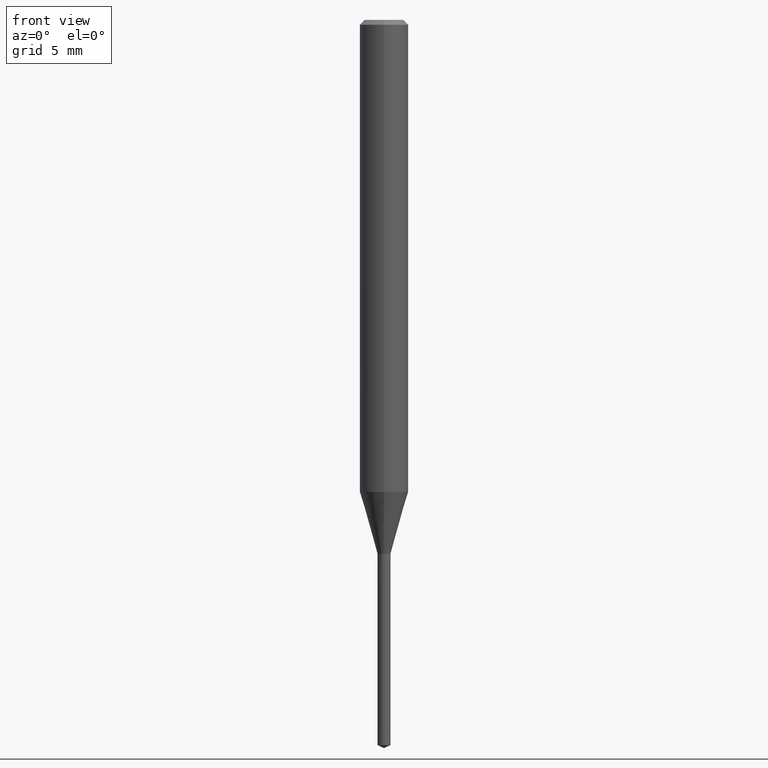
[diagram: clean part render]
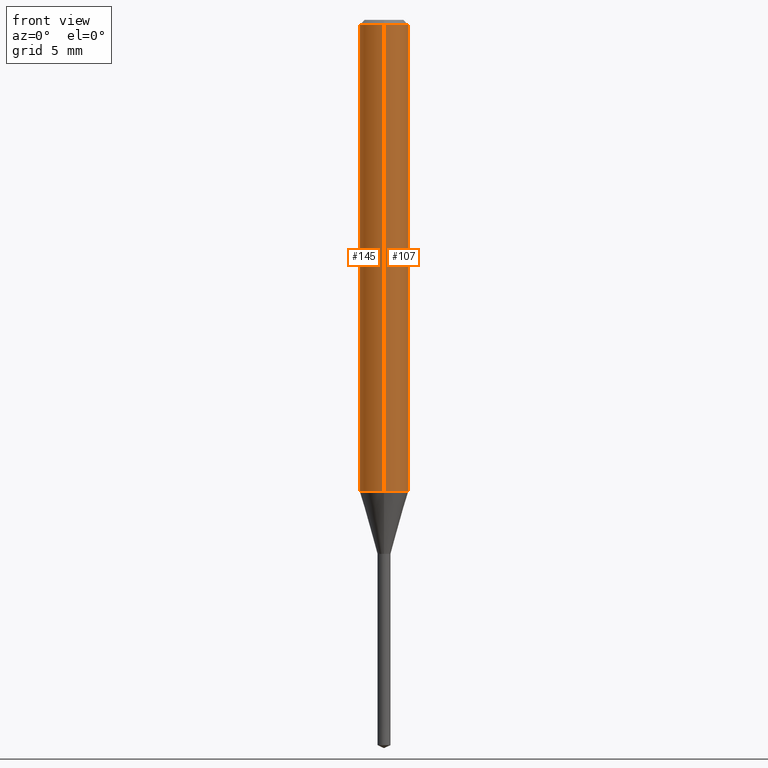
[diagram: same view with one multi-face feature highlighted, each face labeled with its STEP entity id]
A machine part, front view. The highlighted faces form ONE feature: a constant-radius fillet chain: 2 tangent blend faces with common blend radius 1.5 mm. The faces share edges in the B-rep.
Their STEP definitions:
[1] entity #107 (Cylinder):
#107=ADVANCED_FACE('',(#245),#246,.T.);
#119=VERTEX_POINT('',#260);
#135=EDGE_CURVE('',#197,#119,#278,.T.);
#143=EDGE_CURVE('',#119,#153,#287,.T.);
#153=VERTEX_POINT('',#299);
#155=VERTEX_POINT('',#301);
#175=EDGE_CURVE('',#155,#197,#323,.T.);
#191=EDGE_CURVE('',#155,#153,#341,.T.);
#197=VERTEX_POINT('',#347);
#245=FACE_OUTER_BOUND('',#393,.T.);
#246=CYLINDRICAL_SURFACE('',#394,1.5);
#260=CARTESIAN_POINT('',(1.83690953073357E-016,-1.5,-29.164));
#278=CIRCLE('',#434,1.5);
#287=LINE('',#446,#447);
#299=CARTESIAN_POINT('',(1.83690953073357E-016,-1.5,-0.300000000000001));
#301=CARTESIAN_POINT('',(0.0,1.5,-0.300000000000001));
#323=LINE('',#486,#487);
#341=CIRCLE('',#512,1.5);
#347=CARTESIAN_POINT('',(0.0,1.5,-29.164));
#393=EDGE_LOOP('',(#567,#568,#569,#570));
#394=AXIS2_PLACEMENT_3D('',#571,#572,#573);
#434=AXIS2_PLACEMENT_3D('',#620,#621,#622);
#446=CARTESIAN_POINT('',(1.83690953073357E-016,-1.5,-14.732));
#447=VECTOR('',#632,1.0);
#486=CARTESIAN_POINT('',(-1.83690953073357E-016,1.5,-14.732));
#487=VECTOR('',#665,1.0);
#512=AXIS2_PLACEMENT_3D('',#689,#690,#691);
#567=ORIENTED_EDGE('',*,*,#175,.F.);
#568=ORIENTED_EDGE('',*,*,#191,.T.);
#569=ORIENTED_EDGE('',*,*,#143,.F.);
#570=ORIENTED_EDGE('',*,*,#135,.F.);
#571=CARTESIAN_POINT('',(0.0,0.0,-14.732));
#572=DIRECTION('',(-0.0,-0.0,1.0));
#573=DIRECTION('',(0.0,1.0,0.0));
#620=CARTESIAN_POINT('',(0.0,0.0,-29.164));
#621=DIRECTION('',(0.0,0.0,-1.0));
#622=DIRECTION('',(0.0,1.0,0.0));
#632=DIRECTION('',(-0.0,-0.0,1.0));
#665=DIRECTION('',(0.0,0.0,-1.0));
#689=CARTESIAN_POINT('',(0.0,0.0,-0.300000000000001));
#690=DIRECTION('',(0.0,0.0,-1.0));
#691=DIRECTION('',(0.0,1.0,0.0));
[2] entity #145 (Cylinder):
#113=EDGE_CURVE('',#153,#155,#253,.T.);
#119=VERTEX_POINT('',#260);
#143=EDGE_CURVE('',#119,#153,#287,.T.);
#145=ADVANCED_FACE('',(#289),#290,.T.);
#153=VERTEX_POINT('',#299);
#155=VERTEX_POINT('',#301);
#175=EDGE_CURVE('',#155,#197,#323,.T.);
#193=EDGE_CURVE('',#119,#197,#343,.T.);
#197=VERTEX_POINT('',#347);
#253=CIRCLE('',#404,1.5);
#260=CARTESIAN_POINT('',(1.83690953073357E-016,-1.5,-29.164));
#287=LINE('',#446,#447);
#289=FACE_OUTER_BOUND('',#449,.T.);
#290=CYLINDRICAL_SURFACE('',#450,1.5);
#299=CARTESIAN_POINT('',(1.83690953073357E-016,-1.5,-0.300000000000001));
#301=CARTESIAN_POINT('',(0.0,1.5,-0.300000000000001));
#323=LINE('',#486,#487);
#343=CIRCLE('',#515,1.5);
#347=CARTESIAN_POINT('',(0.0,1.5,-29.164));
#404=AXIS2_PLACEMENT_3D('',#583,#584,#585);
#446=CARTESIAN_POINT('',(1.83690953073357E-016,-1.5,-14.732));
#447=VECTOR('',#632,1.0);
#449=EDGE_LOOP('',(#634,#635,#636,#637));
#450=AXIS2_PLACEMENT_3D('',#638,#639,#640);
#486=CARTESIAN_POINT('',(-1.83690953073357E-016,1.5,-14.732));
#487=VECTOR('',#665,1.0);
#515=AXIS2_PLACEMENT_3D('',#692,#693,#694);
#583=CARTESIAN_POINT('',(0.0,0.0,-0.300000000000001));
#584=DIRECTION('',(0.0,0.0,-1.0));
#585=DIRECTION('',(0.0,1.0,0.0));
#632=DIRECTION('',(-0.0,-0.0,1.0));
#634=ORIENTED_EDGE('',*,*,#175,.T.);
#635=ORIENTED_EDGE('',*,*,#193,.F.);
#636=ORIENTED_EDGE('',*,*,#143,.T.);
#637=ORIENTED_EDGE('',*,*,#113,.T.);
#638=CARTESIAN_POINT('',(0.0,0.0,-14.732));
#639=DIRECTION('',(-0.0,-0.0,1.0));
#640=DIRECTION('',(0.0,1.0,0.0));
#665=DIRECTION('',(0.0,0.0,-1.0));
#692=CARTESIAN_POINT('',(0.0,0.0,-29.164));
#693=DIRECTION('',(0.0,0.0,-1.0));
#694=DIRECTION('',(0.0,1.0,0.0));